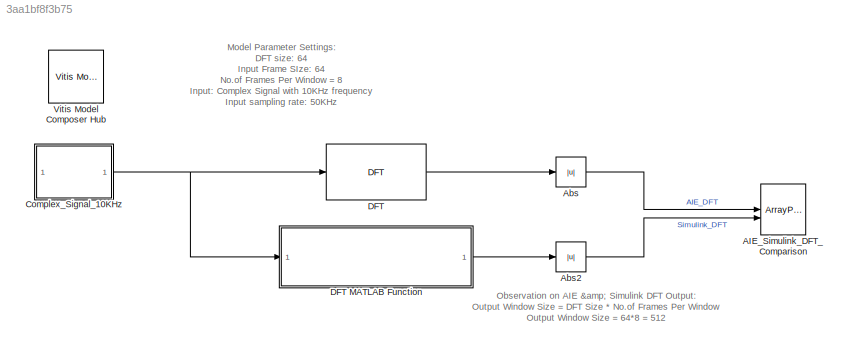
MODEL slx_3aa1bf8f3b75
KIND model
CONFIG AbsTol = auto
CONFIG EnableMultiTasking = off
CONFIG FixedStep = auto
CONFIG MaxStep = auto
CONFIG MinStep = auto
CONFIG RelTol = 1e-3
CONFIG SampleTimeConstraint = Unconstrained
CONFIG SolverName = VariableStepAuto
CONFIG StartTime = 0.0
CONFIG StopTime = 0.5
WORKSPACE source: mxarray member
WORKSPACE DFT_Size = 128
BLOCK [ArrayPlot] AIE_Simulink_DFT_Comparison
  GraphicalSettings = {"Style":{"BackgroundColor":[0.15686274509803921,0.15686274509803921,0.15686274509803921],"AxesColor":[0,0,0],"LabelsColor":[0.68627450980392157,0.68627450980392157,0.68627450980392157],"LineStyle":["-","-"],"LineColor":[[1,1,0.066666666666666666],[1,0,1]],"LineWidth":[1.5,1.5],"Marker":[".","."],"FontSize":"small"},"Cursors":{"Enabled":false,"XLocation":[2,8],"SnapToData":false,"LockSpacing":fals...<+349ch>
  NumInputPorts = 2
  ShowLegend = on
  WasSavedAsWebScope = on
  WindowPosition = [5.000000,41.000000,1272.000000,651.000000,]
  YLimits = [-6.8227,67.2829]
BLOCK [Abs] Abs
  SaturateOnIntegerOverflow = off
BLOCK [Abs] Abs2
  SaturateOnIntegerOverflow = off
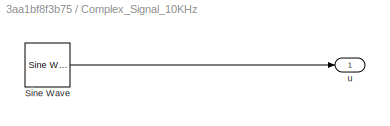
BLOCK [SubSystem] Complex_Signal_10KHz
BLOCK [Reference] Complex_Signal_10KHz/Sine Wave  REF=dspsrcs4/Sine Wave
  SourceBlock = dspsrcs4/Sine Wave
  SourceType = Sine Wave
BLOCK [Outport] Complex_Signal_10KHz/u
BLOCK [Reference] DFT  REF=aieDSP/DFT
  SourceBlock = aieDSP/DFT
  SourceType = DFT
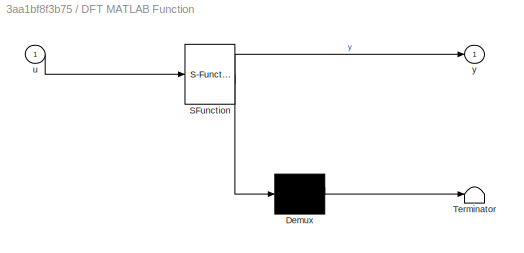
BLOCK [SubSystem] DFT MATLAB Function
  ErrorFcn = Stateflow.Translate.translate
  PermitHierarchicalResolution = ExplicitOnly
  SFBlockType = MATLAB Function
  TreatAsAtomicUnit = on
BLOCK [Demux] DFT MATLAB Function/ Demux 
  Outputs = 1
BLOCK [S-Function] DFT MATLAB Function/ SFunction 
  EnableBusSupport = off
  FunctionName = sf_sfun
  PortCounts = [1 2]
  SFcnIsStateOwnerBlock = off
  SFunctionDeploymentMode = off
  Tag = Stateflow S-Function 2
BLOCK [Terminator] DFT MATLAB Function/ Terminator 
BLOCK [Inport] DFT MATLAB Function/u
BLOCK [Outport] DFT MATLAB Function/y
BLOCK [Reference] Vitis Model Composer Hub  REF=vmcUtilities/Vitis Model Composer Hub
  SourceBlock = vmcUtilities/Vitis Model Composer Hub
  SourceType = VMC Hub
  Tag = genX
  UserDataPersistent = on
ANNOTATION (root): Model Parameter Settings: DFT size: 64 Input Frame SIze: 64 No.of Frames Per Window = 8 Input: Complex Signal with 10KHz frequency Input sampling rate: 50KHz
ANNOTATION (root): Observation on AIE & Simulink DFT Output: Output Window Size = DFT Size * No.of Frames Per Window Output Window Size = 64*8 = 512
LINE Abs2:1 -> AIE_Simulink_DFT_Comparison:2
LINE Abs:1 -> AIE_Simulink_DFT_Comparison:1
LINE Complex_Signal_10KHz/Sine Wave:1 -> Complex_Signal_10KHz/u:1
NET Complex_Signal_10KHz:1 -> DFT MATLAB Function:1, DFT:1
LINE DFT MATLAB Function:1 -> Abs2:1
LINE DFT:1 -> Abs:1
note: NET lines group one-source signal fan-out (src -> all destinations, sorted); 1:1 wires keep LINE
CHART DFT MATLAB Function states=1 transitions=1
  STATE_LABEL 'eML_blk_kernel()'
  STATE_LABEL 'SCRIPT:\n\nfunction y = fcn(u)\n\nDFT_Size = 64; % DFT Size\nFramesPerWindow = 8; %No.of Frames Per Window\n\nX = single(complex(zeros(DFT_Size,FramesPerWindow)));\n\nfor m = 1:1:FramesPerWindow\nfor k = 0:DFT_Size-1\n    for n = 0:DFT_Size-1\n        X(k+1,m) = X(k+1,m) + u(n+1)*exp(-1i*2*pi*n*k/DFT_Size);\n    end\nend\nend\n\ny = reshape(X,DFT_Size*FramesPerWindow,1);\n\n\n\n\n\n\n\n\n\n\n'
CHART  states=0 transitions=0
